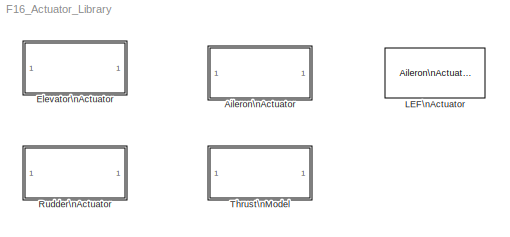
MODEL F16_Actuator_Library
KIND library
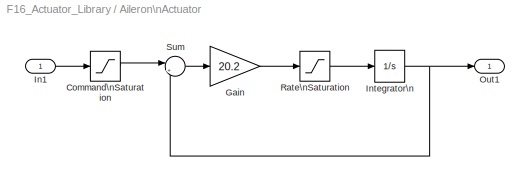
BLOCK [SubSystem] Aileron\nActuator
  Ports = [1, 1]
  TreatAsAtomicUnit = off
BLOCK [Saturate] Aileron\nActuator/Command\nSaturation
  LowerLimit = -21.5
  UpperLimit = 21.5
BLOCK [Gain] Aileron\nActuator/Gain
  Gain = 20.2
BLOCK [Inport] Aileron\nActuator/In1
BLOCK [Integrator] Aileron\nActuator/Integrator\n
  InitialCondition = trim_control(2)
  LowerSaturationLimit = -21.5
  Ports = [1, 1]
  UpperSaturationLimit = 21.5
BLOCK [Outport] Aileron\nActuator/Out1
BLOCK [Saturate] Aileron\nActuator/Rate\nSaturation
  LowerLimit = -80
  UpperLimit = 80
BLOCK [Sum] Aileron\nActuator/Sum
  IconShape = round
  Inputs = |+-
  Ports = [2, 1]
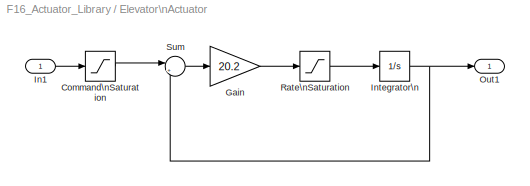
BLOCK [SubSystem] Elevator\nActuator
  Ports = [1, 1]
  TreatAsAtomicUnit = off
BLOCK [Saturate] Elevator\nActuator/Command\nSaturation
  LowerLimit = -25
  UpperLimit = 25
BLOCK [Gain] Elevator\nActuator/Gain
  Gain = 20.2
BLOCK [Inport] Elevator\nActuator/In1
BLOCK [Integrator] Elevator\nActuator/Integrator\n
  InitialCondition = trim_control(1)
  LowerSaturationLimit = -25
  Ports = [1, 1]
  UpperSaturationLimit = 25
BLOCK [Outport] Elevator\nActuator/Out1
BLOCK [Saturate] Elevator\nActuator/Rate\nSaturation
  LowerLimit = -60
  UpperLimit = 60
BLOCK [Sum] Elevator\nActuator/Sum
  IconShape = round
  Inputs = |+-
  Ports = [2, 1]
BLOCK [Reference] LEF\nActuator  REF=F16_Actuator_Library/Aileron\nActuator
  DataTypeOverride = UseLocalSettings
  MinMaxOverflowLogging = UseLocalSettings
  Permissions = ReadWrite
  Ports = [1, 1]
  RTWFcnNameOpts = Auto
  RTWFileNameOpts = Auto
  RTWSystemCode = Auto
  ShowPortLabels = on
  SimViewingDevice = off
  SourceBlock = F16_Actuator_Library/Aileron\nActuator
  SourceType = SubSystem
  TreatAsAtomicUnit = off
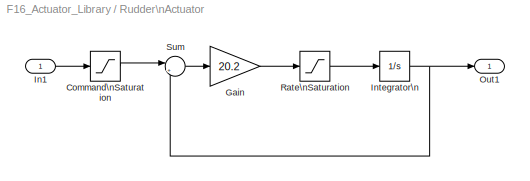
BLOCK [SubSystem] Rudder\nActuator
  Ports = [1, 1]
  TreatAsAtomicUnit = off
BLOCK [Saturate] Rudder\nActuator/Command\nSaturation
  LowerLimit = -30
  UpperLimit = 30
BLOCK [Gain] Rudder\nActuator/Gain
  Gain = 20.2
BLOCK [Inport] Rudder\nActuator/In1
BLOCK [Integrator] Rudder\nActuator/Integrator\n
  InitialCondition = trim_control(3)
  LowerSaturationLimit = -30
  Ports = [1, 1]
  UpperSaturationLimit = 30
BLOCK [Outport] Rudder\nActuator/Out1
BLOCK [Saturate] Rudder\nActuator/Rate\nSaturation
  LowerLimit = -120
  UpperLimit = 120
BLOCK [Sum] Rudder\nActuator/Sum
  IconShape = round
  Inputs = |+-
  Ports = [2, 1]
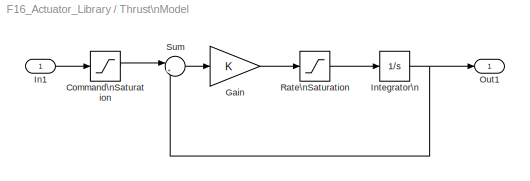
BLOCK [SubSystem] Thrust\nModel
  AncestorBlock = F16_Actuator_Library/Rudder\nActuator
  Ports = [1, 1]
  TreatAsAtomicUnit = off
BLOCK [Saturate] Thrust\nModel/Command\nSaturation
  LowerLimit = 1000
  UpperLimit = 19000
BLOCK [Gain] Thrust\nModel/Gain
BLOCK [Inport] Thrust\nModel/In1
BLOCK [Integrator] Thrust\nModel/Integrator\n
  InitialCondition = trim_thrust
  LowerSaturationLimit = -30
  Ports = [1, 1]
  UpperSaturationLimit = 30
BLOCK [Outport] Thrust\nModel/Out1
BLOCK [Saturate] Thrust\nModel/Rate\nSaturation
  LowerLimit = -10000
  UpperLimit = 10000
BLOCK [Sum] Thrust\nModel/Sum
  IconShape = round
  Inputs = |+-
  Ports = [2, 1]
LINE Aileron\nActuator/Command\nSaturation:1 -> Aileron\nActuator/Sum:1
LINE Aileron\nActuator/Gain:1 -> Aileron\nActuator/Rate\nSaturation:1
LINE Aileron\nActuator/In1:1 -> Aileron\nActuator/Command\nSaturation:1
NET Aileron\nActuator/Integrator\n:1 -> Aileron\nActuator/Out1:1, Aileron\nActuator/Sum:2
LINE Aileron\nActuator/Rate\nSaturation:1 -> Aileron\nActuator/Integrator\n:1
LINE Aileron\nActuator/Sum:1 -> Aileron\nActuator/Gain:1
LINE Elevator\nActuator/Command\nSaturation:1 -> Elevator\nActuator/Sum:1
LINE Elevator\nActuator/Gain:1 -> Elevator\nActuator/Rate\nSaturation:1
LINE Elevator\nActuator/In1:1 -> Elevator\nActuator/Command\nSaturation:1
NET Elevator\nActuator/Integrator\n:1 -> Elevator\nActuator/Out1:1, Elevator\nActuator/Sum:2
LINE Elevator\nActuator/Rate\nSaturation:1 -> Elevator\nActuator/Integrator\n:1
LINE Elevator\nActuator/Sum:1 -> Elevator\nActuator/Gain:1
LINE Rudder\nActuator/Command\nSaturation:1 -> Rudder\nActuator/Sum:1
LINE Rudder\nActuator/Gain:1 -> Rudder\nActuator/Rate\nSaturation:1
LINE Rudder\nActuator/In1:1 -> Rudder\nActuator/Command\nSaturation:1
NET Rudder\nActuator/Integrator\n:1 -> Rudder\nActuator/Out1:1, Rudder\nActuator/Sum:2
LINE Rudder\nActuator/Rate\nSaturation:1 -> Rudder\nActuator/Integrator\n:1
LINE Rudder\nActuator/Sum:1 -> Rudder\nActuator/Gain:1
LINE Thrust\nModel/Command\nSaturation:1 -> Thrust\nModel/Sum:1
LINE Thrust\nModel/Gain:1 -> Thrust\nModel/Rate\nSaturation:1
LINE Thrust\nModel/In1:1 -> Thrust\nModel/Command\nSaturation:1
NET Thrust\nModel/Integrator\n:1 -> Thrust\nModel/Out1:1, Thrust\nModel/Sum:2
LINE Thrust\nModel/Rate\nSaturation:1 -> Thrust\nModel/Integrator\n:1
LINE Thrust\nModel/Sum:1 -> Thrust\nModel/Gain:1
note: NET lines group one-source signal fan-out (src -> all destinations, sorted); 1:1 wires keep LINE
